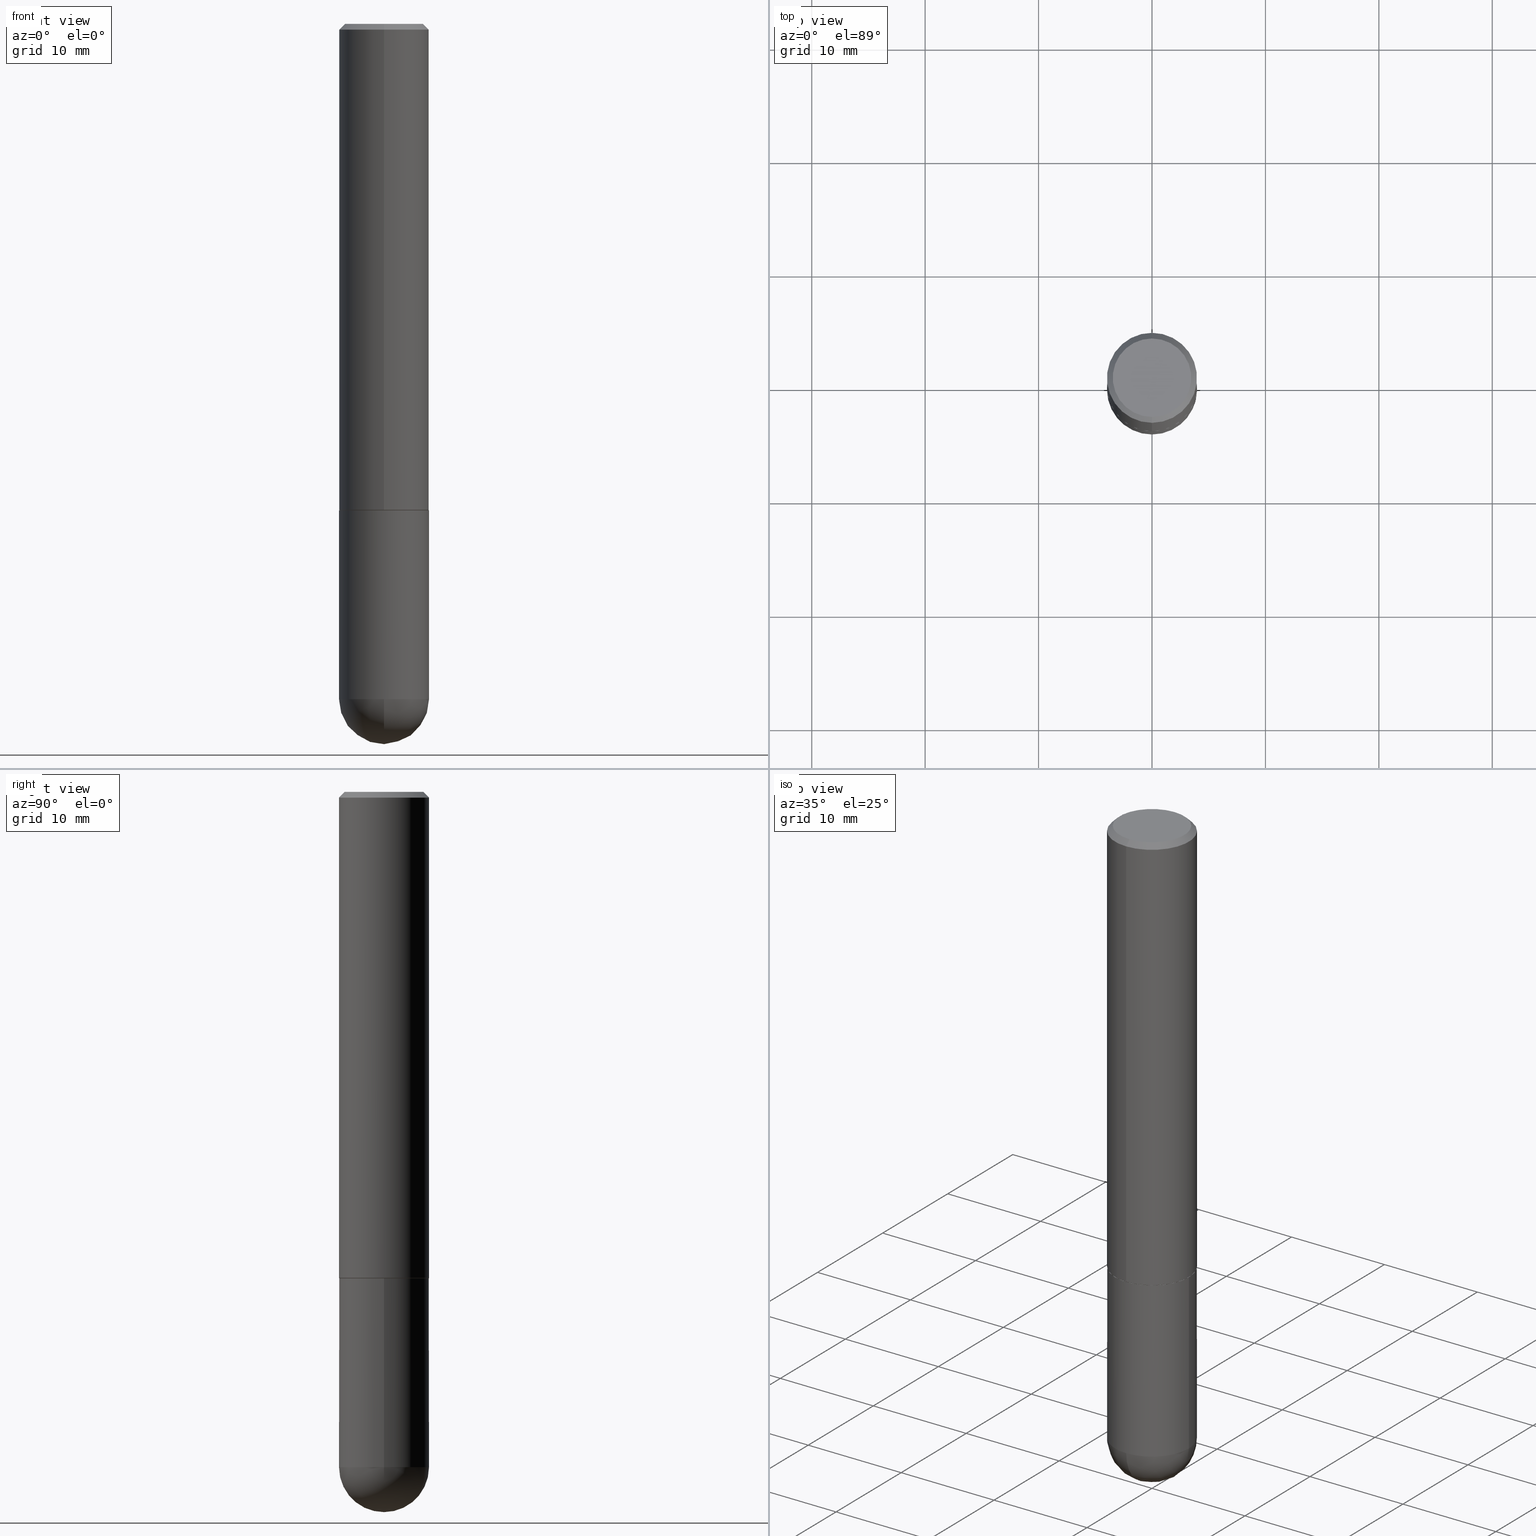
[diagram: canonical four-view strip — front | top / right | iso, engineering-drawing reading convention]
A machine part, canonical four-view strip (front | top / right | iso — engineering-drawing reading convention). The complete STEP part file that produces these views, byte-faithful:
ISO-10303-21;
HEADER;
FILE_DESCRIPTION (( 'STEP AP203' ),
    '1' );
FILE_NAME ('30870.STEP',
    '2024-02-21T16:42:51',
    ( '' ),
    ( '' ),
    'SwSTEP 2.0',
    'SolidWorks 2023',
    '' );
FILE_SCHEMA (( 'CONFIG_CONTROL_DESIGN' ));
ENDSEC;

DATA;
#1 = LINE ( 'NONE', #68, #19 ) ;
#2 = ORIENTED_EDGE ( 'NONE', *, *, #252, .T. ) ;
#3 = DIRECTION ( 'NONE',  ( 2.438088387897960049E-29, -3.491481338843145188E-15, -1.000000000000000000 ) ) ;
#4 = EDGE_CURVE ( 'NONE', #376, #27, #182, .T. ) ;
#5 = CIRCLE ( 'NONE', #246, 0.1562500000000000000 ) ;
#6 = AXIS2_PLACEMENT_3D ( 'NONE', #399, #284, #393 ) ;
#7 = CARTESIAN_POINT ( 'NONE',  ( 1.103117597267596553E-15, 0.1552499999999940872, -1.688000000000000611 ) ) ;
#8 = CARTESIAN_POINT ( 'NONE',  ( 4.127951344840510809E-29, -5.893620499967230340E-15, -1.688000000000000167 ) ) ;
#9 = CIRCLE ( 'NONE', #314, 0.1562500000000000000 ) ;
#10 = VERTEX_POINT ( 'NONE', #278 ) ;
#11 = MECHANICAL_CONTEXT ( 'NONE', #124, 'mechanical' ) ;
#12 = ORIENTED_EDGE ( 'NONE', *, *, #197, .T. ) ;
#13 = LENGTH_MEASURE_WITH_UNIT ( LENGTH_MEASURE( 0.02539999999999999897 ), #285 );
#14 = EDGE_LOOP ( 'NONE', ( #162, #101, #236, #310 ) ) ;
#15 = FACE_OUTER_BOUND ( 'NONE', #14, .T. ) ;
#16 = CARTESIAN_POINT ( 'NONE',  ( 0.000000000000000000, 0.000000000000000000, 0.000000000000000000 ) ) ;
#17 = ORIENTED_EDGE ( 'NONE', *, *, #158, .F. ) ;
#18 = CYLINDRICAL_SURFACE ( 'NONE', #248, 0.1562500000000001110 ) ;
#19 = VECTOR ( 'NONE', #241, 39.37007874015748143 ) ;
#20 = DIRECTION ( 'NONE',  ( -2.445468806185136597E-29, 3.491481338843145583E-15, 1.000000000000000000 ) ) ;
#21 = EDGE_CURVE ( 'NONE', #10, #370, #263, .T. ) ;
#22 = APPROVAL_DATE_TIME ( #322, #165 ) ;
#23 = CLOSED_SHELL ( 'NONE', ( #249, #130, #387, #38, #85 ) ) ;
#24 = AXIS2_PLACEMENT_3D ( 'NONE', #365, #150, #215 ) ;
#25 = CALENDAR_DATE ( 2024, 21, 2 ) ;
#26 = CYLINDRICAL_SURFACE ( 'NONE', #88, 0.1562500000000000000 ) ;
#27 = VERTEX_POINT ( 'NONE', #189 ) ;
#28 = CC_DESIGN_PERSON_AND_ORGANIZATION_ASSIGNMENT ( #359, #43, ( #385 ) ) ;
#29 = APPROVAL_DATE_TIME ( #57, #358 ) ;
#30 = EDGE_LOOP ( 'NONE', ( #179, #266, #2, #301 ) ) ;
#31 = VERTEX_POINT ( 'NONE', #355 ) ;
#32 = CARTESIAN_POINT ( 'NONE',  ( -1.091087918388479765E-15, -0.1562500000000001110, 5.454067469963343169E-16 ) ) ;
#33 = AXIS2_PLACEMENT_3D ( 'NONE', #251, #20, #173 ) ;
#34 = CC_DESIGN_APPROVAL ( #206, ( #346 ) ) ;
#35 = CARTESIAN_POINT ( 'NONE',  ( 8.382172461401028256E-46, -1.196151135086778161E-31, -3.426774895737865631E-17 ) ) ;
#36 = EDGE_LOOP ( 'NONE', ( #219, #139, #347, #51 ) ) ;
#37 = CARTESIAN_POINT ( 'NONE',  ( -1.084104955710751547E-15, -0.1552500000000059110, -1.687999999999999501 ) ) ;
#38 = ADVANCED_FACE ( 'NONE', ( #229 ), #234, .F. ) ;
#39 = ORIENTED_EDGE ( 'NONE', *, *, #405, .T. ) ;
#40 = AXIS2_PLACEMENT_3D ( 'NONE', #204, #331, #132 ) ;
#41 = APPROVAL_PERSON_ORGANIZATION ( #404, #358, #403 ) ;
#42 = DIRECTION ( 'NONE',  ( -2.446082020685560042E-29, 3.490603180776537498E-15, 1.000000000000000000 ) ) ;
#43 = PERSON_AND_ORGANIZATION_ROLE ( 'design_owner' ) ;
#44 = VECTOR ( 'NONE', #237, 39.37007874015748143 ) ;
#45 = ORIENTED_EDGE ( 'NONE', *, *, #342, .T. ) ;
#46 = DIRECTION ( 'NONE',  ( -7.105427357601000281E-15, -1.000000000000000000, 0.000000000000000000 ) ) ;
#47 = CARTESIAN_POINT ( 'NONE',  ( 4.128986450917225387E-29, -5.892138169150795047E-15, -1.688000000000000167 ) ) ;
#48 = APPROVAL_ROLE ( '' ) ;
#49 = EDGE_CURVE ( 'NONE', #183, #31, #5, .T. ) ;
#50 = APPLICATION_PROTOCOL_DEFINITION ( 'international standard', 'config_control_design', 1994, #308 ) ;
#51 = ORIENTED_EDGE ( 'NONE', *, *, #111, .F. ) ;
#52 = ORIENTED_EDGE ( 'NONE', *, *, #342, .F. ) ;
#53 = AXIS2_PLACEMENT_3D ( 'NONE', #47, #305, #121 ) ;
#54 = EDGE_CURVE ( 'NONE', #376, #123, #253, .T. ) ;
#55 = APPROVAL_STATUS ( 'not_yet_approved' ) ;
#56 = ORIENTED_EDGE ( 'NONE', *, *, #275, .T. ) ;
#57 = DATE_AND_TIME ( #226, #160 ) ;
#58 = DIRECTION ( 'NONE',  ( -4.851104656540958753E-15, -0.7071067811865492381, -0.7071067811865457964 ) ) ;
#59 = VECTOR ( 'NONE', #110, 39.37007874015748143 ) ;
#60 = ORIENTED_EDGE ( 'NONE', *, *, #239, .T. ) ;
#61 = SECURITY_CLASSIFICATION_LEVEL ( 'unclassified' ) ;
#62 = CARTESIAN_POINT ( 'NONE',  ( 5.400447736582527652E-29, -8.657341756053672891E-15, -2.343750000000000000 ) ) ;
#63 = CARTESIAN_POINT ( 'NONE',  ( 4.892164041371128702E-31, -6.981206361553086139E-17, -0.02000000000000003511 ) ) ;
#64 = FACE_OUTER_BOUND ( 'NONE', #406, .T. ) ;
#65 = EDGE_CURVE ( 'NONE', #31, #217, #296, .T. ) ;
#66 = DIRECTION ( 'NONE',  ( -6.982962677686266711E-15, -1.000000000000000000, 3.490603180776537498E-15 ) ) ;
#67 = DIRECTION ( 'NONE',  ( 5.024295867788404755E-15, 0.7071067811865981989, 0.7071067811864968355 ) ) ;
#68 = CARTESIAN_POINT ( 'NONE',  ( 1.110223024625157132E-15, 0.1562500000000001110, -5.454067469963343169E-16 ) ) ;
#69 = CARTESIAN_POINT ( 'NONE',  ( 4.892164041371128702E-31, -6.981206361553086139E-17, -0.02000000000000003511 ) ) ;
#70 = DIRECTION ( 'NONE',  ( -2.445468806185136877E-29, 3.491481338843145188E-15, 1.000000000000000000 ) ) ;
#71 = EDGE_CURVE ( 'NONE', #97, #402, #353, .T. ) ;
#72 = CIRCLE ( 'NONE', #24, 0.1562500000000000000 ) ;
#73 = CARTESIAN_POINT ( 'NONE',  ( 0.000000000000000000, 0.000000000000000000, 0.000000000000000000 ) ) ;
#74 = CARTESIAN_POINT ( 'NONE',  ( 5.400447736582527652E-29, -8.657341756053672891E-15, -2.343750000000000000 ) ) ;
#75 = CARTESIAN_POINT ( 'NONE',  ( 1.091087918388535577E-15, 0.1562499999999916733, -2.343750000000000444 ) ) ;
#76 = CARTESIAN_POINT ( 'NONE',  ( 0.000000000000000000, 0.000000000000000000, 0.000000000000000000 ) ) ;
#77 = DIRECTION ( 'NONE',  ( 1.000000000000000000, 0.000000000000000000, 0.000000000000000000 ) ) ;
#78 = CARTESIAN_POINT ( 'NONE',  ( 9.514286648347541549E-16, 0.1362500000000000377, -4.927285578594926758E-16 ) ) ;
#79 = EDGE_CURVE ( 'NONE', #402, #97, #264, .T. ) ;
#80 = AXIS2_PLACEMENT_3D ( 'NONE', #148, #398, #86 ) ;
#81 = VECTOR ( 'NONE', #70, 39.37007874015748143 ) ;
#82 = VERTEX_POINT ( 'NONE', #240 ) ;
#83 = PERSON_AND_ORGANIZATION ( #288, #340 ) ;
#84 = DIRECTION ( 'NONE',  ( -2.445468806185136597E-29, 3.491481338843145583E-15, 1.000000000000000000 ) ) ;
#85 = ADVANCED_FACE ( 'NONE', ( #318 ), #26, .T. ) ;
#86 = DIRECTION ( 'NONE',  ( 1.000000000000000000, -6.982962677686262766E-15, 0.000000000000000000 ) ) ;
#87 = CARTESIAN_POINT ( 'NONE',  ( -1.071952812151801215E-15, -0.1562500000000000833, -0.01999999999999948694 ) ) ;
#88 = AXIS2_PLACEMENT_3D ( 'NONE', #73, #243, #391 ) ;
#89 = SECURITY_CLASSIFICATION ( '', '', #61 ) ;
#90 = COORDINATED_UNIVERSAL_TIME_OFFSET ( 5, 0, .BEHIND. ) ;
#91 = CARTESIAN_POINT ( 'NONE',  ( 1.091087918388479568E-15, 0.1562499999999999445, -0.02000000000000057981 ) ) ;
#92 = PRODUCT_RELATED_PRODUCT_CATEGORY ( 'detail', '', ( #385 ) ) ;
#93 = CIRCLE ( 'NONE', #6, 0.1362500000000000377 ) ;
#94 = DIRECTION ( 'NONE',  ( -6.982962677686265133E-15, -1.000000000000000000, 3.496765431890256920E-15 ) ) ;
#95 = CC_DESIGN_DATE_AND_TIME_ASSIGNMENT ( #369, #195, ( #346 ) ) ;
#96 = DIRECTION ( 'NONE',  ( -2.446082020685560042E-29, 3.490603180776537498E-15, 1.000000000000000000 ) ) ;
#97 = VERTEX_POINT ( 'NONE', #211 ) ;
#98 = AXIS2_PLACEMENT_3D ( 'NONE', #261, #378, #99 ) ;
#99 = DIRECTION ( 'NONE',  ( -6.982962677686265922E-15, -1.000000000000000000, 3.496765431890251792E-15 ) ) ;
#100 = DIRECTION ( 'NONE',  ( -2.446082020685560042E-29, 3.490603180776537498E-15, 1.000000000000000000 ) ) ;
#101 = ORIENTED_EDGE ( 'NONE', *, *, #158, .T. ) ;
#102 = EDGE_CURVE ( 'NONE', #217, #349, #174, .T. ) ;
#103 = CARTESIAN_POINT ( 'NONE',  ( 4.128986450917225387E-29, -5.892138169150795047E-15, -1.688000000000000167 ) ) ;
#104 = CONICAL_SURFACE ( 'NONE', #242, 0.1562500000000000000, 0.7853981633974472798 ) ;
#105 = DIRECTION ( 'NONE',  ( 1.000000000000000000, -6.982962677686265922E-15, 4.883557194083112340E-29 ) ) ;
#106 = DIRECTION ( 'NONE',  ( 1.000000000000000000, -6.982962677686269077E-15, 0.000000000000000000 ) ) ;
#107 = DIRECTION ( 'NONE',  ( -6.982962677686265133E-15, -1.000000000000000000, 3.496765431890256920E-15 ) ) ;
#108 = MANIFOLD_SOLID_BREP ( 'Body-Move/Copy2[1]', #23 ) ;
#109 = CARTESIAN_POINT ( 'NONE',  ( 0.000000000000000000, 0.000000000000000000, 0.000000000000000000 ) ) ;
#110 = DIRECTION ( 'NONE',  ( -4.937700262164884886E-15, -0.7071067811865933139, 0.7071067811865017205 ) ) ;
#111 = EDGE_CURVE ( 'NONE', #97, #27, #339, .T. ) ;
#112 =( NAMED_UNIT ( * ) SI_UNIT ( $, .STERADIAN. ) SOLID_ANGLE_UNIT ( ) );
#113 = DIRECTION ( 'NONE',  ( 1.000000000000000000, -6.982962677686269077E-15, 0.000000000000000000 ) ) ;
#114 = AXIS2_PLACEMENT_3D ( 'NONE', #334, #233, #94 ) ;
#115 = VERTEX_POINT ( 'NONE', #354 ) ;
#116 = ORIENTED_EDGE ( 'NONE', *, *, #102, .F. ) ;
#117 = CARTESIAN_POINT ( 'NONE',  ( 0.000000000000000000, 0.000000000000000000, 0.000000000000000000 ) ) ;
#118 = CARTESIAN_POINT ( 'NONE',  ( -1.003347832174086278E-15, -0.1362500000000000377, 4.413269344234247437E-16 ) ) ;
#119 = EDGE_CURVE ( 'NONE', #370, #349, #227, .T. ) ;
#120 = PLANE ( 'NONE',  #386 ) ;
#121 = DIRECTION ( 'NONE',  ( -6.982962677686265922E-15, -1.000000000000000000, 3.519288880726909138E-15 ) ) ;
#122 = APPROVAL_PERSON_ORGANIZATION ( #126, #165, #315 ) ;
#123 = VERTEX_POINT ( 'NONE', #352 ) ;
#124 = APPLICATION_CONTEXT ( 'configuration controlled 3d designs of mechanical parts and assemblies' ) ;
#125 = CC_DESIGN_PERSON_AND_ORGANIZATION_ASSIGNMENT ( #156, #157, ( #258 ) ) ;
#126 = PERSON_AND_ORGANIZATION ( #288, #340 ) ;
#127 = EDGE_LOOP ( 'NONE', ( #290, #268, #255, #262 ) ) ;
#128 = CIRCLE ( 'NONE', #53, 0.1552499999999999991 ) ;
#129 = DIRECTION ( 'NONE',  ( -2.445468806185136597E-29, 3.491481338843145583E-15, 1.000000000000000000 ) ) ;
#130 = ADVANCED_FACE ( 'NONE', ( #64 ), #192, .T. ) ;
#131 = EDGE_LOOP ( 'NONE', ( #273, #338 ) ) ;
#132 = DIRECTION ( 'NONE',  ( -6.982962677686265922E-15, -1.000000000000000000, 3.496765431890251792E-15 ) ) ;
#133 = VECTOR ( 'NONE', #67, 39.37007874015748143 ) ;
#134 = LOCAL_TIME ( 11, 42, 51.00000000000000000, #90 ) ;
#135 = VERTEX_POINT ( 'NONE', #91 ) ;
#136 = DIRECTION ( 'NONE',  ( 0.000000000000000000, 0.000000000000000000, 1.000000000000000000 ) ) ;
#137 = LOCAL_TIME ( 11, 42, 51.00000000000000000, #292 ) ;
#138 = DIRECTION ( 'NONE',  ( -6.982962677686265922E-15, -1.000000000000000000, 3.519288880726909138E-15 ) ) ;
#139 = ORIENTED_EDGE ( 'NONE', *, *, #286, .T. ) ;
#140 = CALENDAR_DATE ( 2024, 21, 2 ) ;
#141 = EDGE_LOOP ( 'NONE', ( #295, #390, #373, #193 ) ) ;
#142 = ADVANCED_FACE ( 'NONE', ( #202 ), #328, .F. ) ;
#143 = CARTESIAN_POINT ( 'NONE',  ( 4.128986450917225387E-29, -5.892138169150795047E-15, -1.688000000000000167 ) ) ;
#144 = APPROVAL_STATUS ( 'not_yet_approved' ) ;
#145 = AXIS2_PLACEMENT_3D ( 'NONE', #117, #152, #184 ) ;
#146 = ORIENTED_EDGE ( 'NONE', *, *, #405, .F. ) ;
#147 = DIRECTION ( 'NONE',  ( 6.982962677686265922E-15, 1.000000000000000000, -3.490603180776537498E-15 ) ) ;
#148 = CARTESIAN_POINT ( 'NONE',  ( 5.731567514496413899E-29, -8.183159387913622595E-15, -2.343750000000000000 ) ) ;
#149 = EDGE_LOOP ( 'NONE', ( #225, #231 ) ) ;
#150 = DIRECTION ( 'NONE',  ( -2.445468806185136597E-29, 3.491481338843145583E-15, 1.000000000000000000 ) ) ;
#151 = EDGE_LOOP ( 'NONE', ( #39, #321 ) ) ;
#152 = DIRECTION ( 'NONE',  ( -2.445468806185136597E-29, 3.491481338843145583E-15, 1.000000000000000000 ) ) ;
#153 = PERSON_AND_ORGANIZATION_ROLE ( 'creator' ) ;
#154 = AXIS2_PLACEMENT_3D ( 'NONE', #103, #169, #138 ) ;
#155 = APPROVAL_PERSON_ORGANIZATION ( #245, #206, #48 ) ;
#156 = PERSON_AND_ORGANIZATION ( #288, #340 ) ;
#157 = PERSON_AND_ORGANIZATION_ROLE ( 'design_supplier' ) ;
#158 = EDGE_CURVE ( 'NONE', #82, #402, #171, .T. ) ;
#159 = AXIS2_PLACEMENT_3D ( 'NONE', #271, #341, #107 ) ;
#160 = LOCAL_TIME ( 11, 42, 51.00000000000000000, #345 ) ;
#161 = DIRECTION ( 'NONE',  ( -2.446082020685560042E-29, 3.490603180776537498E-15, 1.000000000000000000 ) ) ;
#162 = ORIENTED_EDGE ( 'NONE', *, *, #304, .T. ) ;
#163 = DESIGN_CONTEXT ( 'detailed design', #308, 'design' ) ;
#164 = ORIENTED_EDGE ( 'NONE', *, *, #197, .F. ) ;
#165 = APPROVAL ( #254, 'UNSPECIFIED' ) ;
#166 = CIRCLE ( 'NONE', #374, 0.1562500000000002498 ) ;
#167 = DIRECTION ( 'NONE',  ( 2.446082020685560042E-29, -3.490603180776537498E-15, -1.000000000000000000 ) ) ;
#168 =( GEOMETRIC_REPRESENTATION_CONTEXT ( 3 ) GLOBAL_UNCERTAINTY_ASSIGNED_CONTEXT ( ( #392 ) ) GLOBAL_UNIT_ASSIGNED_CONTEXT ( ( #396, #311, #112 ) ) REPRESENTATION_CONTEXT ( 'NONE', 'WORKASPACE' ) );
#169 = DIRECTION ( 'NONE',  ( -2.446082020685560042E-29, 3.490603180776537498E-15, 1.000000000000000000 ) ) ;
#170 = ORIENTED_EDGE ( 'NONE', *, *, #21, .F. ) ;
#171 = LINE ( 'NONE', #7, #133 ) ;
#172 = CC_DESIGN_PERSON_AND_ORGANIZATION_ASSIGNMENT ( #83, #153, ( #346 ) ) ;
#173 = DIRECTION ( 'NONE',  ( 1.000000000000000000, -6.982962677686262766E-15, 0.000000000000000000 ) ) ;
#174 = CIRCLE ( 'NONE', #401, 0.1562500000000000000 ) ;
#175 = AXIS2_PLACEMENT_3D ( 'NONE', #16, #136, #77 ) ;
#176 = ORIENTED_EDGE ( 'NONE', *, *, #65, .F. ) ;
#177 = DIRECTION ( 'NONE',  ( -6.982962677686265922E-15, -1.000000000000000000, 3.490603180776537104E-15 ) ) ;
#178 = COORDINATED_UNIVERSAL_TIME_OFFSET ( 5, 0, .BEHIND. ) ;
#179 = ORIENTED_EDGE ( 'NONE', *, *, #54, .F. ) ;
#180 = EDGE_CURVE ( 'NONE', #82, #256, #289, .T. ) ;
#181 = CARTESIAN_POINT ( 'NONE',  ( 1.091087918388479568E-15, 0.1562499999999999445, -0.02000000000000057981 ) ) ;
#182 = LINE ( 'NONE', #87, #408 ) ;
#183 = VERTEX_POINT ( 'NONE', #75 ) ;
#184 = DIRECTION ( 'NONE',  ( 1.000000000000000000, -6.982962677686266711E-15, 4.876176775795936353E-29 ) ) ;
#185 = DIRECTION ( 'NONE',  ( 6.982962677686265922E-15, 1.000000000000000000, -3.496765431890251398E-15 ) ) ;
#186 = AXIS2_PLACEMENT_3D ( 'NONE', #337, #105, #330 ) ;
#187 = EDGE_LOOP ( 'NONE', ( #176, #12, #361, #303, #116 ) ) ;
#188 = DATE_TIME_ROLE ( 'classification_date' ) ;
#189 = CARTESIAN_POINT ( 'NONE',  ( -1.071952812151801215E-15, -0.1562500000000000833, -0.01999999999999948694 ) ) ;
#190 = ADVANCED_FACE ( 'NONE', ( #272 ), #18, .T. ) ;
#191 = CLOSED_SHELL ( 'NONE', ( #218, #210, #291, #223, #190, #259, #142, #325 ) ) ;
#192 = SPHERICAL_SURFACE ( 'NONE', #326, 0.1562500000000002498 ) ;
#193 = ORIENTED_EDGE ( 'NONE', *, *, #309, .T. ) ;
#194 = LOCAL_TIME ( 11, 42, 51.00000000000000000, #178 ) ;
#195 = DATE_TIME_ROLE ( 'creation_date' ) ;
#196 = DIMENSIONAL_EXPONENTS ( 1.000000000000000000, 0.000000000000000000, 0.000000000000000000, 0.000000000000000000, 0.000000000000000000, 0.000000000000000000, 0.000000000000000000 ) ;
#197 = EDGE_CURVE ( 'NONE', #31, #10, #72, .T. ) ;
#198 = SHAPE_DEFINITION_REPRESENTATION ( #287, #208 ) ;
#199 = DIRECTION ( 'NONE',  ( -1.000000000000000000, 6.982962677686265922E-15, -4.876176775795935793E-29 ) ) ;
#200 = CARTESIAN_POINT ( 'NONE',  ( 5.400447736582527652E-29, -8.657341756053672891E-15, -2.343750000000000000 ) ) ;
#201 = DIRECTION ( 'NONE',  ( 1.000000000000000000, -6.982962677686262766E-15, 0.000000000000000000 ) ) ;
#202 = FACE_OUTER_BOUND ( 'NONE', #149, .T. ) ;
#203 = AXIS2_PLACEMENT_3D ( 'NONE', #74, #212, #185 ) ;
#204 = CARTESIAN_POINT ( 'NONE',  ( 4.126540368896540526E-29, -5.888647565970019255E-15, -1.687000000000000055 ) ) ;
#205 = DIRECTION ( 'NONE',  ( 2.446082020685560042E-29, -3.490603180776537498E-15, -1.000000000000000000 ) ) ;
#206 = APPROVAL ( #144, 'UNSPECIFIED' ) ;
#207 = CIRCLE ( 'NONE', #186, 0.1562500000000002498 ) ;
#208 = ADVANCED_BREP_SHAPE_REPRESENTATION ( '30870', ( #108, #380, #175 ), #168 ) ;
#209 = DIRECTION ( 'NONE',  ( 6.982962677686265133E-15, 1.000000000000000000, -3.496765431890256920E-15 ) ) ;
#210 = ADVANCED_FACE ( 'NONE', ( #388 ), #312, .T. ) ;
#211 = CARTESIAN_POINT ( 'NONE',  ( -1.091087918388439336E-15, -0.1562500000000060785, -1.686999999999999611 ) ) ;
#212 = DIRECTION ( 'NONE',  ( -1.000000000000000000, 6.982962677686265922E-15, -4.883557194083112340E-29 ) ) ;
#213 = ORIENTED_EDGE ( 'NONE', *, *, #49, .F. ) ;
#214 = FACE_OUTER_BOUND ( 'NONE', #366, .T. ) ;
#215 = DIRECTION ( 'NONE',  ( 1.000000000000000000, -6.982962677686262766E-15, 0.000000000000000000 ) ) ;
#216 = DIRECTION ( 'NONE',  ( 4.937700262164542520E-15, 0.7071067811865443531, -0.7071067811865506814 ) ) ;
#217 = VERTEX_POINT ( 'NONE', #306 ) ;
#218 = ADVANCED_FACE ( 'NONE', ( #15 ), #279, .T. ) ;
#219 = ORIENTED_EDGE ( 'NONE', *, *, #71, .T. ) ;
#220 = DIRECTION ( 'NONE',  ( 6.982962677686265133E-15, 1.000000000000000000, -3.496765431890256920E-15 ) ) ;
#221 = PERSON_AND_ORGANIZATION_ROLE ( 'classification_officer' ) ;
#222 = CIRCLE ( 'NONE', #33, 0.1562500000000000000 ) ;
#223 = ADVANCED_FACE ( 'NONE', ( #377 ), #104, .T. ) ;
#224 = CALENDAR_DATE ( 2024, 21, 2 ) ;
#225 = ORIENTED_EDGE ( 'NONE', *, *, #304, .F. ) ;
#226 = CALENDAR_DATE ( 2024, 21, 2 ) ;
#227 = LINE ( 'NONE', #407, #44 ) ;
#228 = PERSON_AND_ORGANIZATION ( #288, #340 ) ;
#229 = FACE_OUTER_BOUND ( 'NONE', #151, .T. ) ;
#230 = CONICAL_SURFACE ( 'NONE', #336, 0.1552499999999999991, 0.7853981633975165577 ) ;
#231 = ORIENTED_EDGE ( 'NONE', *, *, #180, .F. ) ;
#232 = EDGE_CURVE ( 'NONE', #123, #376, #93, .T. ) ;
#233 = DIRECTION ( 'NONE',  ( -2.446082020685560042E-29, 3.490603180776537498E-15, 1.000000000000000000 ) ) ;
#234 = PLANE ( 'NONE',  #360 ) ;
#235 = DIRECTION ( 'NONE',  ( -1.000000000000000000, 6.982962677686265922E-15, -4.883557194083112340E-29 ) ) ;
#236 = ORIENTED_EDGE ( 'NONE', *, *, #71, .F. ) ;
#237 = DIRECTION ( 'NONE',  ( -2.445468806185136877E-29, 3.491481338843145188E-15, 1.000000000000000000 ) ) ;
#238 = VECTOR ( 'NONE', #96, 39.37007874015748143 ) ;
#239 = EDGE_CURVE ( 'NONE', #256, #97, #277, .T. ) ;
#240 = CARTESIAN_POINT ( 'NONE',  ( 1.106670310946397649E-15, 0.1552499999999940872, -1.688000000000000611 ) ) ;
#241 = DIRECTION ( 'NONE',  ( -2.446082020685560042E-29, 3.490603180776537498E-15, 1.000000000000000000 ) ) ;
#242 = AXIS2_PLACEMENT_3D ( 'NONE', #69, #205, #220 ) ;
#243 = DIRECTION ( 'NONE',  ( -2.445468806185136597E-29, 3.491481338843145583E-15, 1.000000000000000000 ) ) ;
#244 = DIRECTION ( 'NONE',  ( -2.446082020685560042E-29, 3.490603180776537498E-15, 1.000000000000000000 ) ) ;
#245 = PERSON_AND_ORGANIZATION ( #288, #340 ) ;
#246 = AXIS2_PLACEMENT_3D ( 'NONE', #323, #129, #201 ) ;
#247 = CYLINDRICAL_SURFACE ( 'NONE', #145, 0.1562500000000000000 ) ;
#248 = AXIS2_PLACEMENT_3D ( 'NONE', #109, #244, #283 ) ;
#249 = ADVANCED_FACE ( 'NONE', ( #293 ), #247, .T. ) ;
#250 = CARTESIAN_POINT ( 'NONE',  ( 4.127951344840510809E-29, -5.893620499967230340E-15, -1.688000000000000167 ) ) ;
#251 = CARTESIAN_POINT ( 'NONE',  ( 5.731567514496413899E-29, -8.183159387913622595E-15, -2.343750000000000000 ) ) ;
#252 = EDGE_CURVE ( 'NONE', #27, #135, #302, .T. ) ;
#253 = CIRCLE ( 'NONE', #317, 0.1362500000000000377 ) ;
#254 = APPROVAL_STATUS ( 'not_yet_approved' ) ;
#255 = ORIENTED_EDGE ( 'NONE', *, *, #111, .T. ) ;
#256 = VERTEX_POINT ( 'NONE', #37 ) ;
#257 = DATE_AND_TIME ( #320, #137 ) ;
#258 = PRODUCT_DEFINITION_FORMATION_WITH_SPECIFIED_SOURCE ( 'ANY', '', #385, .NOT_KNOWN. ) ;
#259 = ADVANCED_FACE ( 'NONE', ( #299 ), #230, .T. ) ;
#260 = DIRECTION ( 'NONE',  ( -6.982962677686265922E-15, -1.000000000000000000, 3.519288880726909138E-15 ) ) ;
#261 = CARTESIAN_POINT ( 'NONE',  ( 4.126540368896540526E-29, -5.888647565970019255E-15, -1.687000000000000055 ) ) ;
#262 = ORIENTED_EDGE ( 'NONE', *, *, #309, .F. ) ;
#263 = CIRCLE ( 'NONE', #80, 0.1562500000000000000 ) ;
#264 = CIRCLE ( 'NONE', #98, 0.1562500000000002220 ) ;
#265 = DIRECTION ( 'NONE',  ( -2.446082020685559481E-29, 3.490603180776537498E-15, 1.000000000000000000 ) ) ;
#266 = ORIENTED_EDGE ( 'NONE', *, *, #4, .T. ) ;
#267 = EDGE_CURVE ( 'NONE', #115, #10, #166, .T. ) ;
#268 = ORIENTED_EDGE ( 'NONE', *, *, #79, .T. ) ;
#269 = VECTOR ( 'NONE', #216, 39.37007874015748143 ) ;
#270 = APPLICATION_PROTOCOL_DEFINITION ( 'international standard', 'config_control_design', 1994, #124 ) ;
#271 = CARTESIAN_POINT ( 'NONE',  ( 4.892164041371128702E-31, -6.981206361553086139E-17, -0.02000000000000003511 ) ) ;
#272 = FACE_OUTER_BOUND ( 'NONE', #127, .T. ) ;
#273 = ORIENTED_EDGE ( 'NONE', *, *, #232, .T. ) ;
#274 = CARTESIAN_POINT ( 'NONE',  ( 0.1562500000000000000, -8.129477862328905246E-15, -2.343750000000000000 ) ) ;
#275 = EDGE_CURVE ( 'NONE', #115, #183, #207, .T. ) ;
#276 = CARTESIAN_POINT ( 'NONE',  ( 0.1562500000000000000, -6.984708418355709513E-15, -1.688000000000000167 ) ) ;
#277 = LINE ( 'NONE', #375, #59 ) ;
#278 = CARTESIAN_POINT ( 'NONE',  ( -1.110223024625101517E-15, -0.1562500000000085487, -2.343749999999999556 ) ) ;
#279 = CONICAL_SURFACE ( 'NONE', #362, 0.1552499999999999991, 0.7853981633975165577 ) ;
#280 = APPROVAL_DATE_TIME ( #363, #206 ) ;
#281 = CC_DESIGN_APPROVAL ( #165, ( #89 ) ) ;
#282 = ORIENTED_EDGE ( 'NONE', *, *, #267, .T. ) ;
#283 = DIRECTION ( 'NONE',  ( -6.982962677686265922E-15, -1.000000000000000000, 3.490603180776537104E-15 ) ) ;
#284 = DIRECTION ( 'NONE',  ( -2.446082020685560042E-29, 3.490603180776537498E-15, 1.000000000000000000 ) ) ;
#285 =( LENGTH_UNIT ( ) NAMED_UNIT ( * ) SI_UNIT ( $, .METRE. ) );
#286 = EDGE_CURVE ( 'NONE', #402, #135, #1, .T. ) ;
#287 = PRODUCT_DEFINITION_SHAPE ( 'NONE', 'NONE',  #346 ) ;
#288 = PERSON ( 'UNSPECIFIED', 'UNSPECIFIED', 'UNSPECIFIED', ('UNSPECIFIED'), ('UNSPECIFIED'), ('UNSPECIFIED') ) ;
#289 = CIRCLE ( 'NONE', #154, 0.1552499999999999991 ) ;
#290 = ORIENTED_EDGE ( 'NONE', *, *, #286, .F. ) ;
#291 = ADVANCED_FACE ( 'NONE', ( #351 ), #367, .T. ) ;
#292 = COORDINATED_UNIVERSAL_TIME_OFFSET ( 5, 0, .BEHIND. ) ;
#293 = FACE_OUTER_BOUND ( 'NONE', #411, .T. ) ;
#294 = CIRCLE ( 'NONE', #159, 0.1562500000000000000 ) ;
#295 = ORIENTED_EDGE ( 'NONE', *, *, #4, .F. ) ;
#296 = LINE ( 'NONE', #412, #81 ) ;
#297 = EDGE_LOOP ( 'NONE', ( #17, #356, #60, #372 ) ) ;
#298 = CC_DESIGN_PERSON_AND_ORGANIZATION_ASSIGNMENT ( #228, #316, ( #258 ) ) ;
#299 = FACE_OUTER_BOUND ( 'NONE', #297, .T. ) ;
#300 = CARTESIAN_POINT ( 'NONE',  ( 1.091087918388520392E-15, 0.1562499999999940881, -1.688000000000000611 ) ) ;
#301 = ORIENTED_EDGE ( 'NONE', *, *, #350, .F. ) ;
#302 = CIRCLE ( 'NONE', #114, 0.1562500000000000000 ) ;
#303 = ORIENTED_EDGE ( 'NONE', *, *, #119, .T. ) ;
#304 = EDGE_CURVE ( 'NONE', #256, #82, #128, .T. ) ;
#305 = DIRECTION ( 'NONE',  ( -2.446082020685560042E-29, 3.490603180776537498E-15, 1.000000000000000000 ) ) ;
#306 = CARTESIAN_POINT ( 'NONE',  ( -0.1562500000000000000, -5.928166919315269532E-15, -1.688000000000000167 ) ) ;
#307 = DIRECTION ( 'NONE',  ( -2.445468806185136597E-29, 3.491481338843145583E-15, 1.000000000000000000 ) ) ;
#308 = APPLICATION_CONTEXT ( 'configuration controlled 3d designs of mechanical parts and assemblies' ) ;
#309 = EDGE_CURVE ( 'NONE', #135, #27, #294, .T. ) ;
#310 = ORIENTED_EDGE ( 'NONE', *, *, #239, .F. ) ;
#311 =( NAMED_UNIT ( * ) PLANE_ANGLE_UNIT ( ) SI_UNIT ( $, .RADIAN. ) );
#312 = CYLINDRICAL_SURFACE ( 'NONE', #344, 0.1562500000000001110 ) ;
#313 = FACE_OUTER_BOUND ( 'NONE', #131, .T. ) ;
#314 = AXIS2_PLACEMENT_3D ( 'NONE', #250, #84, #113 ) ;
#315 = APPROVAL_ROLE ( '' ) ;
#316 = PERSON_AND_ORGANIZATION_ROLE ( 'creator' ) ;
#317 = AXIS2_PLACEMENT_3D ( 'NONE', #35, #161, #66 ) ;
#318 = FACE_OUTER_BOUND ( 'NONE', #187, .T. ) ;
#319 = CC_DESIGN_DATE_AND_TIME_ASSIGNMENT ( #257, #188, ( #89 ) ) ;
#320 = CALENDAR_DATE ( 2024, 21, 2 ) ;
#321 = ORIENTED_EDGE ( 'NONE', *, *, #102, .T. ) ;
#322 = DATE_AND_TIME ( #25, #329 ) ;
#323 = CARTESIAN_POINT ( 'NONE',  ( 5.731567514496413899E-29, -8.183159387913622595E-15, -2.343750000000000000 ) ) ;
#324 = DIRECTION ( 'NONE',  ( 6.982962677686265922E-15, 1.000000000000000000, -3.496765431890251398E-15 ) ) ;
#325 = ADVANCED_FACE ( 'NONE', ( #313 ), #120, .F. ) ;
#326 = AXIS2_PLACEMENT_3D ( 'NONE', #200, #235, #324 ) ;
#327 = ORIENTED_EDGE ( 'NONE', *, *, #49, .T. ) ;
#328 = PLANE ( 'NONE',  #379 ) ;
#329 = LOCAL_TIME ( 11, 42, 51.00000000000000000, #400 ) ;
#330 = DIRECTION ( 'NONE',  ( 6.982962677686265922E-15, 1.000000000000000000, 0.000000000000000000 ) ) ;
#331 = DIRECTION ( 'NONE',  ( -2.446082020685560042E-29, 3.490603180776537498E-15, 1.000000000000000000 ) ) ;
#332 = CARTESIAN_POINT ( 'NONE',  ( 4.128986450917225387E-29, -5.892138169150795047E-15, -1.688000000000000167 ) ) ;
#333 = ORIENTED_EDGE ( 'NONE', *, *, #65, .T. ) ;
#334 = CARTESIAN_POINT ( 'NONE',  ( 4.892164041371128702E-31, -6.981206361553086139E-17, -0.02000000000000003511 ) ) ;
#335 = ORIENTED_EDGE ( 'NONE', *, *, #119, .F. ) ;
#336 = AXIS2_PLACEMENT_3D ( 'NONE', #332, #100, #410 ) ;
#337 = CARTESIAN_POINT ( 'NONE',  ( 5.400447736582527652E-29, -8.657341756053672891E-15, -2.343750000000000000 ) ) ;
#338 = ORIENTED_EDGE ( 'NONE', *, *, #54, .T. ) ;
#339 = LINE ( 'NONE', #32, #238 ) ;
#340 = ORGANIZATION ( 'UNSPECIFIED', 'UNSPECIFIED', '' ) ;
#341 = DIRECTION ( 'NONE',  ( -2.446082020685560042E-29, 3.490603180776537498E-15, 1.000000000000000000 ) ) ;
#342 = EDGE_CURVE ( 'NONE', #370, #183, #222, .T. ) ;
#343 = LINE ( 'NONE', #181, #269 ) ;
#344 = AXIS2_PLACEMENT_3D ( 'NONE', #76, #42, #177 ) ;
#345 = COORDINATED_UNIVERSAL_TIME_OFFSET ( 5, 0, .BEHIND. ) ;
#346 = PRODUCT_DEFINITION ( 'UNKNOWN', '', #258, #163 ) ;
#347 = ORIENTED_EDGE ( 'NONE', *, *, #252, .F. ) ;
#348 = ORIENTED_EDGE ( 'NONE', *, *, #267, .F. ) ;
#349 = VERTEX_POINT ( 'NONE', #276 ) ;
#350 = EDGE_CURVE ( 'NONE', #123, #135, #343, .T. ) ;
#351 = FACE_OUTER_BOUND ( 'NONE', #30, .T. ) ;
#352 = CARTESIAN_POINT ( 'NONE',  ( 1.021258291611616861E-15, 0.1362500000000000377, -5.098624323381820686E-16 ) ) ;
#353 = CIRCLE ( 'NONE', #40, 0.1562500000000002220 ) ;
#354 = CARTESIAN_POINT ( 'NONE',  ( 5.789233224183170584E-29, -9.193318162129576161E-15, -2.500000000000000000 ) ) ;
#355 = CARTESIAN_POINT ( 'NONE',  ( -0.1562500000000000000, -5.928166919315270321E-15, -2.343750000000000000 ) ) ;
#356 = ORIENTED_EDGE ( 'NONE', *, *, #180, .T. ) ;
#357 = DIRECTION ( 'NONE',  ( -1.000000000000000000, 7.105427357601001070E-15, -4.926315508542082329E-29 ) ) ;
#358 = APPROVAL ( #55, 'UNSPECIFIED' ) ;
#359 = PERSON_AND_ORGANIZATION ( #288, #340 ) ;
#360 = AXIS2_PLACEMENT_3D ( 'NONE', #300, #3, #199 ) ;
#361 = ORIENTED_EDGE ( 'NONE', *, *, #21, .T. ) ;
#362 = AXIS2_PLACEMENT_3D ( 'NONE', #143, #395, #260 ) ;
#363 = DATE_AND_TIME ( #140, #194 ) ;
#364 = DIRECTION ( 'NONE',  ( 2.446082020685559481E-29, -3.490603180776537498E-15, -1.000000000000000000 ) ) ;
#365 = CARTESIAN_POINT ( 'NONE',  ( 5.731567514496413899E-29, -8.183159387913622595E-15, -2.343750000000000000 ) ) ;
#366 = EDGE_LOOP ( 'NONE', ( #348, #56, #52, #170 ) ) ;
#367 = CONICAL_SURFACE ( 'NONE', #409, 0.1562500000000000000, 0.7853981633974472798 ) ;
#368 = CC_DESIGN_SECURITY_CLASSIFICATION ( #89, ( #258 ) ) ;
#369 = DATE_AND_TIME ( #224, #134 ) ;
#370 = VERTEX_POINT ( 'NONE', #274 ) ;
#371 = PERSON_AND_ORGANIZATION ( #288, #340 ) ;
#372 = ORIENTED_EDGE ( 'NONE', *, *, #79, .F. ) ;
#373 = ORIENTED_EDGE ( 'NONE', *, *, #350, .T. ) ;
#374 = AXIS2_PLACEMENT_3D ( 'NONE', #62, #357, #46 ) ;
#375 = CARTESIAN_POINT ( 'NONE',  ( -1.084104955710751547E-15, -0.1552500000000059110, -1.687999999999999501 ) ) ;
#376 = VERTEX_POINT ( 'NONE', #118 ) ;
#377 = FACE_OUTER_BOUND ( 'NONE', #141, .T. ) ;
#378 = DIRECTION ( 'NONE',  ( -2.446082020685560042E-29, 3.490603180776537498E-15, 1.000000000000000000 ) ) ;
#379 = AXIS2_PLACEMENT_3D ( 'NONE', #381, #265, #384 ) ;
#380 = MANIFOLD_SOLID_BREP ( 'Body-Move/Copy2[2]', #191 ) ;
#381 = CARTESIAN_POINT ( 'NONE',  ( 4.128986450917225387E-29, -5.892138169150795047E-15, -1.688000000000000167 ) ) ;
#382 = ORIENTED_EDGE ( 'NONE', *, *, #275, .F. ) ;
#383 = CC_DESIGN_PERSON_AND_ORGANIZATION_ASSIGNMENT ( #371, #221, ( #89 ) ) ;
#384 = DIRECTION ( 'NONE',  ( -6.982962677686265922E-15, -1.000000000000000000, 3.490603180776537498E-15 ) ) ;
#385 = PRODUCT ( '30870', '30870', '', ( #11 ) ) ;
#386 = AXIS2_PLACEMENT_3D ( 'NONE', #78, #364, #147 ) ;
#387 = ADVANCED_FACE ( 'NONE', ( #214 ), #389, .T. ) ;
#388 = FACE_OUTER_BOUND ( 'NONE', #36, .T. ) ;
#389 = SPHERICAL_SURFACE ( 'NONE', #203, 0.1562500000000002498 ) ;
#390 = ORIENTED_EDGE ( 'NONE', *, *, #232, .F. ) ;
#391 = DIRECTION ( 'NONE',  ( 1.000000000000000000, -6.982962677686266711E-15, 4.876176775795936353E-29 ) ) ;
#392 = UNCERTAINTY_MEASURE_WITH_UNIT (LENGTH_MEASURE( 1.000000000000000082E-05 ), #396, 'distance_accuracy_value', 'NONE');
#393 = DIRECTION ( 'NONE',  ( -6.982962677686266711E-15, -1.000000000000000000, 3.490603180776537498E-15 ) ) ;
#394 = CC_DESIGN_APPROVAL ( #358, ( #258 ) ) ;
#395 = DIRECTION ( 'NONE',  ( -2.446082020685560042E-29, 3.490603180776537498E-15, 1.000000000000000000 ) ) ;
#396 =( CONVERSION_BASED_UNIT ( 'INCH', #13 ) LENGTH_UNIT ( ) NAMED_UNIT ( #196 ) );
#397 = CARTESIAN_POINT ( 'NONE',  ( 1.110223024625178431E-15, 0.1562499999999943379, -1.687000000000000499 ) ) ;
#398 = DIRECTION ( 'NONE',  ( -2.445468806185136597E-29, 3.491481338843145583E-15, 1.000000000000000000 ) ) ;
#399 = CARTESIAN_POINT ( 'NONE',  ( 8.382172461401028256E-46, -1.196151135086778161E-31, -3.426774895737865631E-17 ) ) ;
#400 = COORDINATED_UNIVERSAL_TIME_OFFSET ( 5, 0, .BEHIND. ) ;
#401 = AXIS2_PLACEMENT_3D ( 'NONE', #8, #307, #106 ) ;
#402 = VERTEX_POINT ( 'NONE', #397 ) ;
#403 = APPROVAL_ROLE ( '' ) ;
#404 = PERSON_AND_ORGANIZATION ( #288, #340 ) ;
#405 = EDGE_CURVE ( 'NONE', #349, #217, #9, .T. ) ;
#406 = EDGE_LOOP ( 'NONE', ( #382, #282, #164, #213 ) ) ;
#407 = CARTESIAN_POINT ( 'NONE',  ( 0.1562500000000000000, -1.091087918388479174E-15, 7.619026212181150377E-30 ) ) ;
#408 = VECTOR ( 'NONE', #58, 39.37007874015748143 ) ;
#409 = AXIS2_PLACEMENT_3D ( 'NONE', #63, #167, #209 ) ;
#410 = DIRECTION ( 'NONE',  ( -6.982962677686265922E-15, -1.000000000000000000, 3.519288880726909138E-15 ) ) ;
#411 = EDGE_LOOP ( 'NONE', ( #327, #333, #146, #335, #45 ) ) ;
#412 = CARTESIAN_POINT ( 'NONE',  ( -0.1562500000000000000, 1.110223024625156540E-15, -7.685836078523291160E-30 ) ) ;
ENDSEC;
END-ISO-10303-21;
